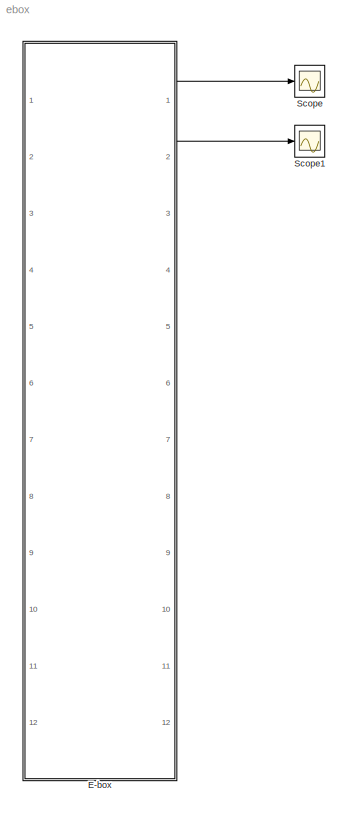
MODEL ebox
KIND model
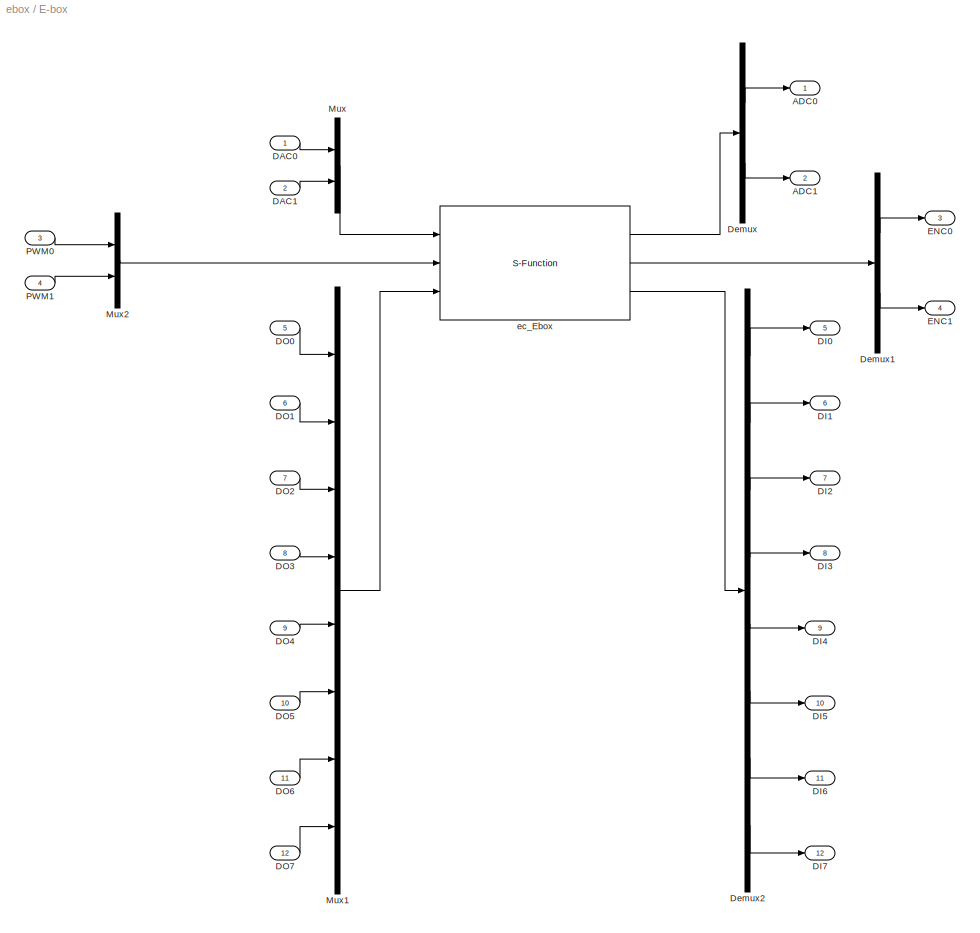
BLOCK [SubSystem] E-box
  FunctionWithSeparateData = off
  MaskEnableString = on
  MaskHideContents = off
  MaskIconFrame = on
  MaskIconOpaque = on
  MaskIconRotate = none
  MaskIconUnits = autoscale
  MaskPortRotate = default
  MaskPromptString = Link id (>=0)
  MaskStyleString = edit
  MaskToolTipString = on
  MaskTunableValueString = on
  MaskType = E-box
  MaskValueString = 0
  MaskVariables = link_id=@1;
  MaskVisibilityString = on
  MinAlgLoopOccurrences = off
  Opaque = off
  Ports = [12, 12]
  PropExecContextOutsideSubsystem = off
  RTWSystemCode = Auto
  RequestExecContextInheritance = off
  SID = 1
BLOCK [Outport] E-box/ADC0
  IconDisplay = Port number
  SID = 18
BLOCK [Outport] E-box/ADC1
  IconDisplay = Port number
  Port = 2
  SID = 19
BLOCK [Inport] E-box/DAC0
  IconDisplay = Port number
  SID = 2
BLOCK [Inport] E-box/DAC1
  IconDisplay = Port number
  Port = 2
  SID = 3
BLOCK [Outport] E-box/DI0
  IconDisplay = Port number
  Port = 5
  SID = 22
BLOCK [Outport] E-box/DI1
  IconDisplay = Port number
  Port = 6
  SID = 23
BLOCK [Outport] E-box/DI2
  IconDisplay = Port number
  Port = 7
  SID = 24
BLOCK [Outport] E-box/DI3
  IconDisplay = Port number
  Port = 8
  SID = 25
BLOCK [Outport] E-box/DI4
  IconDisplay = Port number
  Port = 9
  SID = 26
BLOCK [Outport] E-box/DI5
  IconDisplay = Port number
  Port = 10
  SID = 27
BLOCK [Outport] E-box/DI6
  IconDisplay = Port number
  Port = 11
  SID = 28
BLOCK [Outport] E-box/DI7
  IconDisplay = Port number
  Port = 12
  SID = 29
BLOCK [Inport] E-box/DO0
  IconDisplay = Port number
  Port = 5
  SID = 4
BLOCK [Inport] E-box/DO1
  IconDisplay = Port number
  Port = 6
  SID = 5
BLOCK [Inport] E-box/DO2
  IconDisplay = Port number
  Port = 7
  SID = 6
BLOCK [Inport] E-box/DO3
  IconDisplay = Port number
  Port = 8
  SID = 7
BLOCK [Inport] E-box/DO4
  IconDisplay = Port number
  Port = 9
  SID = 8
BLOCK [Inport] E-box/DO5
  IconDisplay = Port number
  Port = 10
  SID = 9
BLOCK [Inport] E-box/DO6
  IconDisplay = Port number
  Port = 11
  SID = 10
BLOCK [Inport] E-box/DO7
  IconDisplay = Port number
  Port = 12
  SID = 11
BLOCK [Demux] E-box/Demux
  DisplayOption = bar
  Outputs = 2
  Ports = [1, 2]
  SID = 12
BLOCK [Demux] E-box/Demux1
  DisplayOption = bar
  Outputs = 2
  Ports = [1, 2]
  SID = 13
BLOCK [Demux] E-box/Demux2
  DisplayOption = bar
  Outputs = 8
  Ports = [1, 8]
  SID = 14
BLOCK [Outport] E-box/ENC0
  IconDisplay = Port number
  Port = 3
  SID = 20
BLOCK [Outport] E-box/ENC1
  IconDisplay = Port number
  Port = 4
  SID = 21
BLOCK [Mux] E-box/Mux
  DisplayOption = bar
  Inputs = 2
  Ports = [2, 1]
  SID = 15
BLOCK [Mux] E-box/Mux1
  DisplayOption = bar
  Inputs = 8
  Ports = [8, 1]
  SID = 16
BLOCK [Mux] E-box/Mux2
  DisplayOption = bar
  Inputs = 2
  Ports = [2, 1]
  SID = 34
BLOCK [Inport] E-box/PWM0
  IconDisplay = Port number
  Port = 3
  SID = 32
BLOCK [Inport] E-box/PWM1
  IconDisplay = Port number
  Port = 4
  SID = 33
BLOCK [S-Function] E-box/ec_Ebox
  EnableBusSupport = off
  FunctionName = ec_Ebox
  MaskDisplay = port_label('output',1,'ADC')\nport_label('output',2,'ENC')\nport_label('output',3,'DI')\nport_label('input',1,'DAC')\nport_label('input',2,'PWM')\nport_label('input',3,'DO')
  MaskEnableString = on
  MaskIconFrame = on
  MaskIconOpaque = on
  MaskIconRotate = none
  MaskIconUnits = autoscale
  MaskPortRotate = default
  MaskPromptString = analog in id (start from 1)
  MaskStyleString = edit
  MaskToolTipString = on
  MaskTunableValueString = on
  MaskValueString = link_id
  MaskVariables = link_id=@1;
  MaskVisibilityString = on
  Parameters = link_id
  Ports = [3, 3]
  SID = 17
BLOCK [Scope] Scope
  DataFormat = Array
  Floating = off
  LimitDataPoints = off
  NumInputPorts = 1
  Ports = [1]
  SID = 30
  SampleTime = 0
  SaveName = y1
  SaveToWorkspace = on
  TimeRange = 0.2
  YMax = 0.9
  YMin = -1
BLOCK [Scope] Scope1
  DataFormat = Array
  Floating = off
  LimitDataPoints = off
  NumInputPorts = 1
  Ports = [1]
  SID = 31
  SampleTime = 0
  SaveName = y2
  SaveToWorkspace = on
  TimeRange = 1
  YMax = 0.0594
  YMin = 0.0581
LINE E-box/DAC0:1 -> E-box/Mux:1
LINE E-box/DAC1:1 -> E-box/Mux:2
LINE E-box/DO0:1 -> E-box/Mux1:1
LINE E-box/DO1:1 -> E-box/Mux1:2
LINE E-box/DO2:1 -> E-box/Mux1:3
LINE E-box/DO3:1 -> E-box/Mux1:4
LINE E-box/DO4:1 -> E-box/Mux1:5
LINE E-box/DO5:1 -> E-box/Mux1:6
LINE E-box/DO6:1 -> E-box/Mux1:7
LINE E-box/DO7:1 -> E-box/Mux1:8
LINE E-box/Demux1:1 -> E-box/ENC0:1
LINE E-box/Demux1:2 -> E-box/ENC1:1
LINE E-box/Demux2:1 -> E-box/DI0:1
LINE E-box/Demux2:2 -> E-box/DI1:1
LINE E-box/Demux2:3 -> E-box/DI2:1
LINE E-box/Demux2:4 -> E-box/DI3:1
LINE E-box/Demux2:5 -> E-box/DI4:1
LINE E-box/Demux2:6 -> E-box/DI5:1
LINE E-box/Demux2:7 -> E-box/DI6:1
LINE E-box/Demux2:8 -> E-box/DI7:1
LINE E-box/Demux:1 -> E-box/ADC0:1
LINE E-box/Demux:2 -> E-box/ADC1:1
LINE E-box/Mux1:1 -> E-box/ec_Ebox:3
LINE E-box/Mux2:1 -> E-box/ec_Ebox:2
LINE E-box/Mux:1 -> E-box/ec_Ebox:1
LINE E-box/PWM0:1 -> E-box/Mux2:1
LINE E-box/PWM1:1 -> E-box/Mux2:2
LINE E-box/ec_Ebox:1 -> E-box/Demux:1
LINE E-box/ec_Ebox:2 -> E-box/Demux1:1
LINE E-box/ec_Ebox:3 -> E-box/Demux2:1
LINE E-box:1 -> Scope:1
LINE E-box:2 -> Scope1:1
